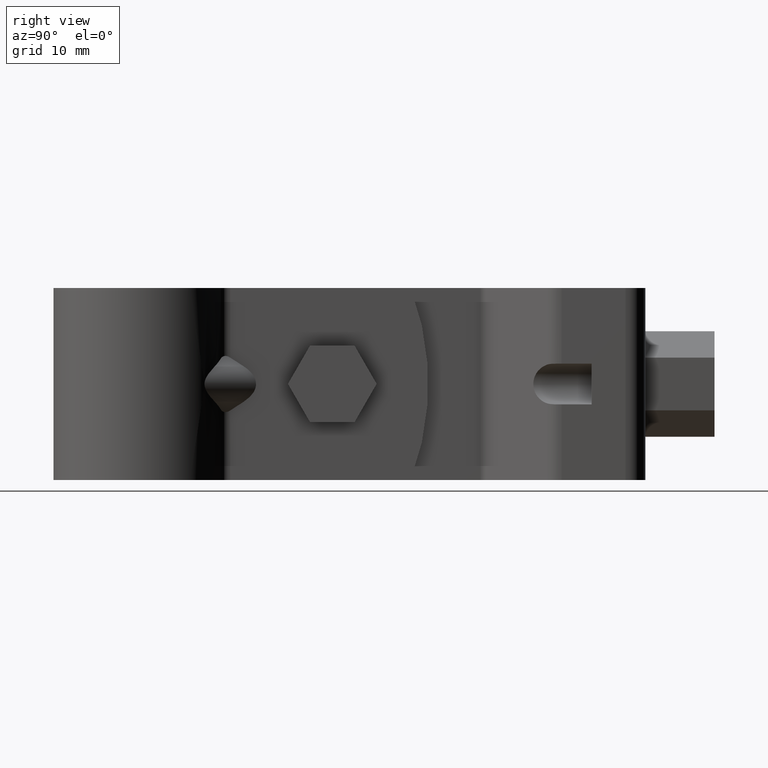
[diagram: clean part render]
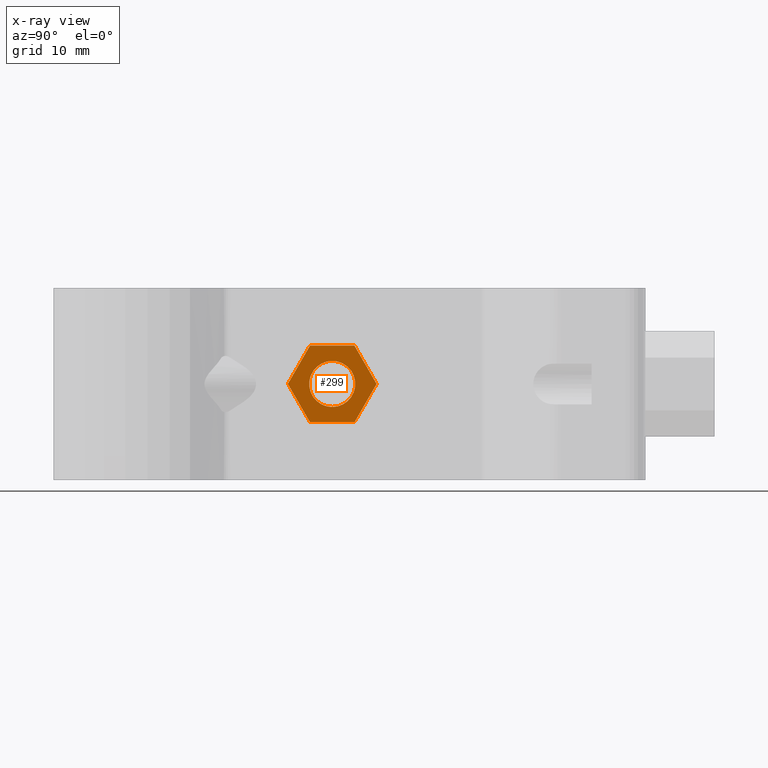
[diagram: x-ray — body ghosted, one internal face saturated and labeled with its STEP entity id]
A machine part, right view, then the same camera in x-ray: the body is ghosted and one INTERNAL B-rep face — a face not visible from any outside direction — is saturated and labeled: STEP entity #299.
In plain terms, the highlighted planar face has unit normal (-1, 0, 0).
Its self-contained STEP definition (entity closure, byte-faithful):
#299 = ADVANCED_FACE( '', ( #460, #461 ), #462, .T. );
#460 = FACE_OUTER_BOUND( '', #732, .T. );
#461 = FACE_BOUND( '', #733, .T. );
#462 = PLANE( '', #734 );
#732 = EDGE_LOOP( '', ( #1206, #1207, #1208, #1209, #1210, #1211 ) );
#733 = EDGE_LOOP( '', ( #1212 ) );
#734 = AXIS2_PLACEMENT_3D( '', #1213, #1214, #1215 );
#1206 = ORIENTED_EDGE( '', *, *, #2022, .F. );
#1207 = ORIENTED_EDGE( '', *, *, #2023, .F. );
#1208 = ORIENTED_EDGE( '', *, *, #2024, .F. );
#1209 = ORIENTED_EDGE( '', *, *, #2025, .F. );
#1210 = ORIENTED_EDGE( '', *, *, #2026, .F. );
#1211 = ORIENTED_EDGE( '', *, *, #2027, .F. );
#1212 = ORIENTED_EDGE( '', *, *, #2028, .T. );
#1213 = CARTESIAN_POINT( '', ( 5.10000000000000, 15.9976049885474, -4.99999999999856 ) );
#1214 = DIRECTION( '', ( -1.00000000000000, 6.06692130572647E-017, 0.000000000000000 ) );
#1215 = DIRECTION( '', ( 0.000000000000000, 0.000000000000000, 1.00000000000000 ) );
#2022 = EDGE_CURVE( '', #2399, #2400, #2401, .T. );
#2023 = EDGE_CURVE( '', #2402, #2399, #2403, .T. );
#2024 = EDGE_CURVE( '', #2404, #2402, #2405, .T. );
#2025 = EDGE_CURVE( '', #2406, #2404, #2407, .T. );
#2026 = EDGE_CURVE( '', #2408, #2406, #2409, .T. );
#2027 = EDGE_CURVE( '', #2400, #2408, #2410, .T. );
#2028 = EDGE_CURVE( '', #2411, #2411, #2412, .F. );
#2399 = VERTEX_POINT( '', #3059 );
#2400 = VERTEX_POINT( '', #3060 );
#2401 = LINE( '', #3061, #3062 );
#2402 = VERTEX_POINT( '', #3063 );
#2403 = LINE( '', #3064, #3065 );
#2404 = VERTEX_POINT( '', #3066 );
#2405 = LINE( '', #3067, #3068 );
#2406 = VERTEX_POINT( '', #3069 );
#2407 = LINE( '', #3070, #3071 );
#2408 = VERTEX_POINT( '', #3072 );
#2409 = LINE( '', #3073, #3074 );
#2410 = LINE( '', #3075, #3076 );
#2411 = VERTEX_POINT( '', #3077 );
#2412 = CIRCLE( '', #3078, 2.99999999999914 );
#3059 = CARTESIAN_POINT( '', ( 5.10000000000000, 21.7711076804420, -4.99999999999856 ) );
#3060 = CARTESIAN_POINT( '', ( 5.10000000000000, 27.5446103723366, -4.99999999999856 ) );
#3061 = CARTESIAN_POINT( '', ( 5.10000000000000, 21.7711076804420, -4.99999999999856 ) );
#3062 = VECTOR( '', #3853, 999.999999999904 );
#3063 = CARTESIAN_POINT( '', ( 5.10000000000000, 18.8843563344948, -8.67361737988404E-016 ) );
#3064 = CARTESIAN_POINT( '', ( 5.10000000000000, 18.8843563344948, 1.93178474057305E-016 ) );
#3065 = VECTOR( '', #3854, 999.999999999904 );
#3066 = CARTESIAN_POINT( '', ( 5.10000000000000, 21.7711076804420, 4.99999999999856 ) );
#3067 = CARTESIAN_POINT( '', ( 5.10000000000000, 21.7711076804420, 4.99999999999856 ) );
#3068 = VECTOR( '', #3855, 999.999999999904 );
#3069 = CARTESIAN_POINT( '', ( 5.10000000000000, 27.5446103723366, 4.99999999999856 ) );
#3070 = CARTESIAN_POINT( '', ( 5.10000000000000, 27.5446103723366, 4.99999999999856 ) );
#3071 = VECTOR( '', #3856, 999.999999999904 );
#3072 = CARTESIAN_POINT( '', ( 5.10000000000000, 30.4313617182839, -8.67361737988404E-016 ) );
#3073 = CARTESIAN_POINT( '', ( 5.10000000000000, 30.4313617182839, -1.22087514200364E-015 ) );
#3074 = VECTOR( '', #3857, 999.999999999904 );
#3075 = CARTESIAN_POINT( '', ( 5.10000000000000, 27.5446103723366, -4.99999999999856 ) );
#3076 = VECTOR( '', #3858, 999.999999999904 );
#3077 = CARTESIAN_POINT( '', ( 5.10000000000000, 24.6578590263894, 2.99999999999914 ) );
#3078 = AXIS2_PLACEMENT_3D( '', #3859, #3860, #3861 );
#3853 = DIRECTION( '', ( 6.06692130572647E-017, 1.00000000000000, -3.00462919747432E-016 ) );
#3854 = DIRECTION( '', ( 3.03346065286324E-017, 0.500000000000000, -0.866025403784439 ) );
#3855 = DIRECTION( '', ( -3.03346065286324E-017, -0.500000000000000, -0.866025403784439 ) );
#3856 = DIRECTION( '', ( -6.06692130572647E-017, -1.00000000000000, 0.000000000000000 ) );
#3857 = DIRECTION( '', ( -3.03346065286324E-017, -0.500000000000000, 0.866025403784439 ) );
#3858 = DIRECTION( '', ( 3.03346065286324E-017, 0.500000000000000, 0.866025403784439 ) );
#3859 = CARTESIAN_POINT( '', ( 5.10000000000000, 24.6578590263894, -8.67361737988404E-016 ) );
#3860 = DIRECTION( '', ( -1.00000000000000, 6.06692130572647E-017, 0.000000000000000 ) );
#3861 = DIRECTION( '', ( 0.000000000000000, 0.000000000000000, 1.00000000000000 ) );